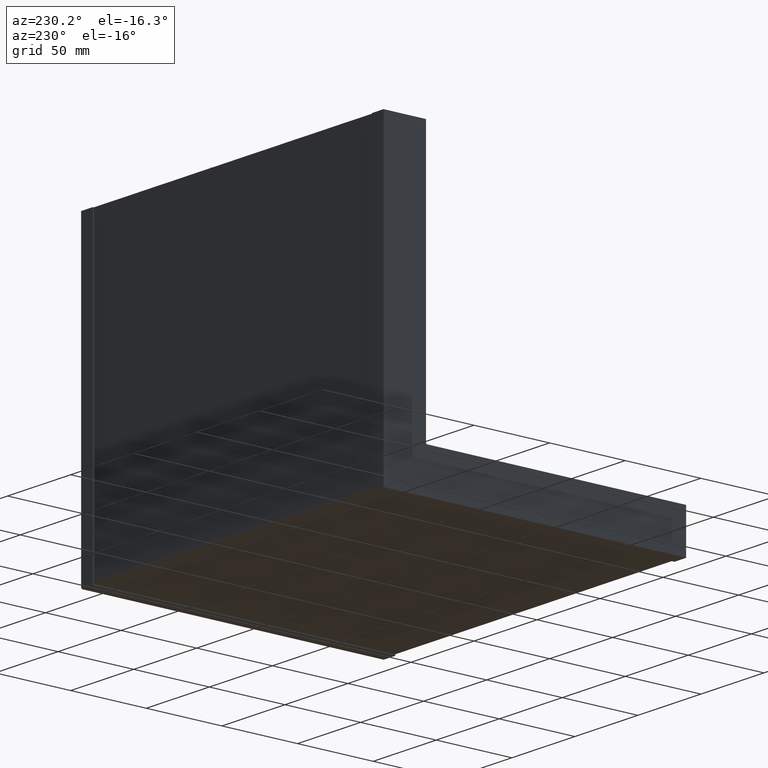
[diagram: clean part render]
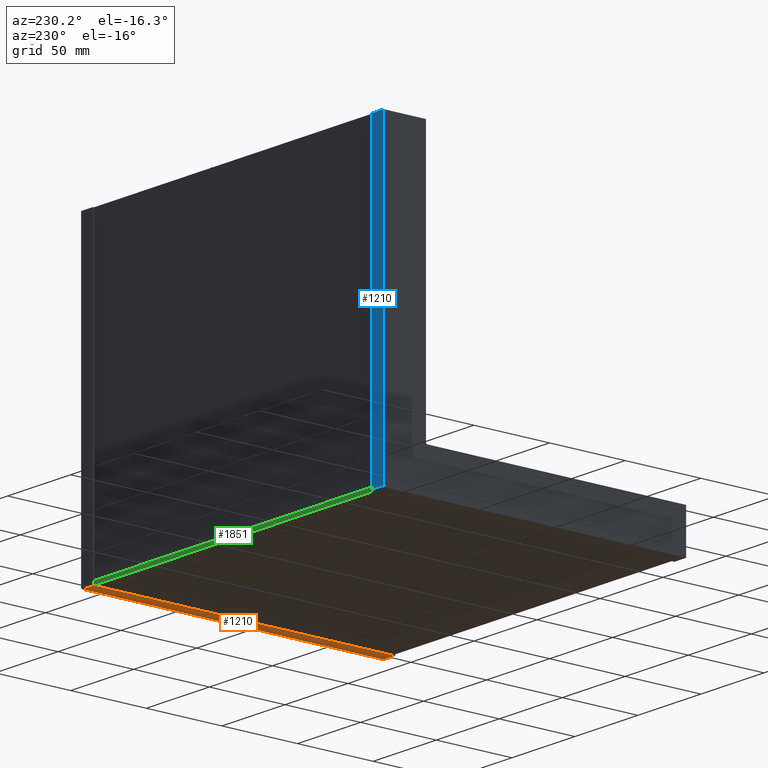
[diagram: same view with three faces highlighted in distinct colors, each labeled with its STEP entity id]
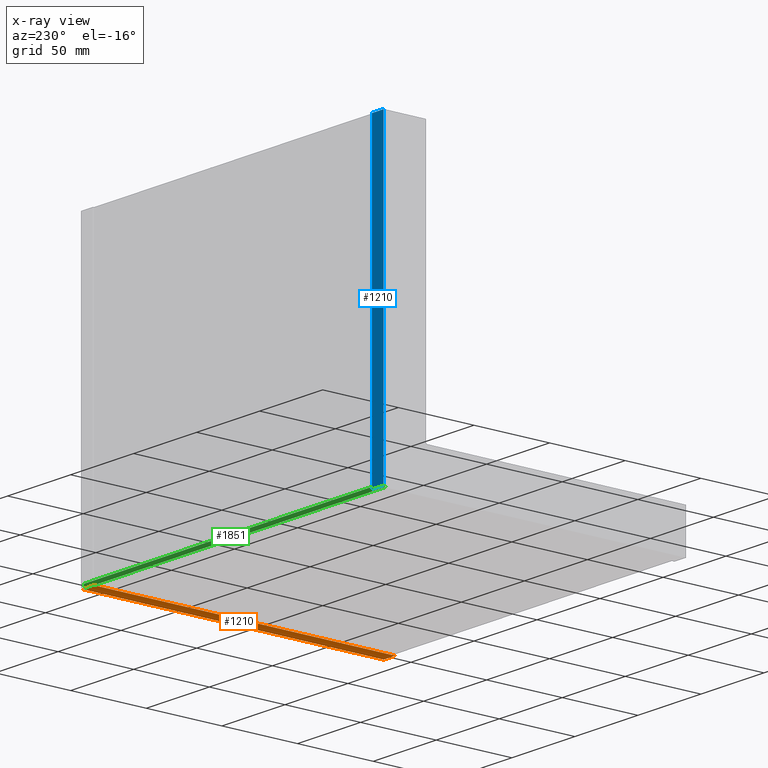
[diagram: x-ray of the same camera — body ghosted, the three highlighted faces saturated]
A machine part, auxiliary view with three faces highlighted in distinct colors.
The next image is the same camera in x-ray (body ghosted, the three faces saturated) — at least one of them is partly hidden behind the body in this view.
Their STEP definitions:

[orange] entity #1210 — the highlighted planar face has unit normal (0, 0, 1).
#813=DIRECTION('',(0.E0,1.E0,0.E0));
#814=VECTOR('',#813,9.25E0);
#815=CARTESIAN_POINT('',(-1.4E1,0.E0,0.E0));
#816=LINE('',#815,#814);
#885=DIRECTION('',(0.E0,0.E0,-1.E0));
#886=VECTOR('',#885,1.99E2);
#887=CARTESIAN_POINT('',(-1.4E1,0.E0,0.E0));
#888=LINE('',#887,#886);
#892=DIRECTION('',(0.E0,1.E0,0.E0));
#893=VECTOR('',#892,9.25E0);
#894=CARTESIAN_POINT('',(-1.4E1,0.E0,-1.99E2));
#895=LINE('',#894,#893);
#979=DIRECTION('',(0.E0,0.E0,-1.E0));
#980=VECTOR('',#979,1.99E2);
#981=CARTESIAN_POINT('',(-1.4E1,9.25E0,0.E0));
#982=LINE('',#981,#980);
#986=CARTESIAN_POINT('',(-1.4E1,0.E0,0.E0));
#987=CARTESIAN_POINT('',(-1.4E1,0.E0,-1.99E2));
#988=VERTEX_POINT('',#986);
#989=VERTEX_POINT('',#987);
#1010=CARTESIAN_POINT('',(-1.4E1,9.25E0,-1.99E2));
#1012=VERTEX_POINT('',#1010);
#1022=CARTESIAN_POINT('',(-1.4E1,9.25E0,0.E0));
#1023=VERTEX_POINT('',#1022);
#1197=CARTESIAN_POINT('',(-1.4E1,7.5E-1,0.E0));
#1198=DIRECTION('',(1.E0,0.E0,0.E0));
#1199=DIRECTION('',(0.E0,0.E0,-1.E0));
#1200=AXIS2_PLACEMENT_3D('',#1197,#1198,#1199);
#1201=PLANE('',#1200);
#1202=ORIENTED_EDGE('',*,*,#1183,.T.);
#1204=ORIENTED_EDGE('',*,*,#1203,.T.);
#1206=ORIENTED_EDGE('',*,*,#1205,.F.);
#1207=ORIENTED_EDGE('',*,*,#1129,.F.);
#1208=EDGE_LOOP('',(#1202,#1204,#1206,#1207));
#1209=FACE_OUTER_BOUND('',#1208,.F.);
#1129=EDGE_CURVE('',#988,#1023,#816,.T.);
#1183=EDGE_CURVE('',#988,#989,#888,.T.);
#1203=EDGE_CURVE('',#989,#1012,#895,.T.);
#1205=EDGE_CURVE('',#1023,#1012,#982,.T.);
#1210=ADVANCED_FACE('',(#1209),#1201,.F.);

[blue] entity #1210 — the highlighted planar face has unit normal (0, -1, 0).
#813=DIRECTION('',(0.E0,1.E0,0.E0));
#814=VECTOR('',#813,9.25E0);
#815=CARTESIAN_POINT('',(-1.4E1,0.E0,0.E0));
#816=LINE('',#815,#814);
#885=DIRECTION('',(0.E0,0.E0,-1.E0));
#886=VECTOR('',#885,1.99E2);
#887=CARTESIAN_POINT('',(-1.4E1,0.E0,0.E0));
#888=LINE('',#887,#886);
#892=DIRECTION('',(0.E0,1.E0,0.E0));
#893=VECTOR('',#892,9.25E0);
#894=CARTESIAN_POINT('',(-1.4E1,0.E0,-1.99E2));
#895=LINE('',#894,#893);
#979=DIRECTION('',(0.E0,0.E0,-1.E0));
#980=VECTOR('',#979,1.99E2);
#981=CARTESIAN_POINT('',(-1.4E1,9.25E0,0.E0));
#982=LINE('',#981,#980);
#986=CARTESIAN_POINT('',(-1.4E1,0.E0,0.E0));
#987=CARTESIAN_POINT('',(-1.4E1,0.E0,-1.99E2));
#988=VERTEX_POINT('',#986);
#989=VERTEX_POINT('',#987);
#1010=CARTESIAN_POINT('',(-1.4E1,9.25E0,-1.99E2));
#1012=VERTEX_POINT('',#1010);
#1022=CARTESIAN_POINT('',(-1.4E1,9.25E0,0.E0));
#1023=VERTEX_POINT('',#1022);
#1197=CARTESIAN_POINT('',(-1.4E1,7.5E-1,0.E0));
#1198=DIRECTION('',(1.E0,0.E0,0.E0));
#1199=DIRECTION('',(0.E0,0.E0,-1.E0));
#1200=AXIS2_PLACEMENT_3D('',#1197,#1198,#1199);
#1201=PLANE('',#1200);
#1202=ORIENTED_EDGE('',*,*,#1183,.T.);
#1204=ORIENTED_EDGE('',*,*,#1203,.T.);
#1206=ORIENTED_EDGE('',*,*,#1205,.F.);
#1207=ORIENTED_EDGE('',*,*,#1129,.F.);
#1208=EDGE_LOOP('',(#1202,#1204,#1206,#1207));
#1209=FACE_OUTER_BOUND('',#1208,.F.);
#1129=EDGE_CURVE('',#988,#1023,#816,.T.);
#1183=EDGE_CURVE('',#988,#989,#888,.T.);
#1203=EDGE_CURVE('',#989,#1012,#895,.T.);
#1205=EDGE_CURVE('',#1023,#1012,#982,.T.);
#1210=ADVANCED_FACE('',(#1209),#1201,.F.);

[green] entity #1851 — the highlighted cylindrical surface (edge-blend (fillet) strip) has radius 1.75 mm, axis along (1, 0, 0).
#1496=DIRECTION('',(1.E0,0.E0,0.E0));
#1497=VECTOR('',#1496,2.375E2);
#1498=CARTESIAN_POINT('',(-1.1875E2,6.700775253285E-1,1.E0));
#1499=LINE('',#1498,#1497);
#1645=CARTESIAN_POINT('',(-1.1875E2,-1.079922474672E0,1.E0));
#1646=DIRECTION('',(-1.E0,0.E0,0.E0));
#1647=DIRECTION('',(0.E0,1.E0,1.624097681737E-14));
#1648=AXIS2_PLACEMENT_3D('',#1645,#1646,#1647);
#1653=DIRECTION('',(1.E0,0.E0,0.E0));
#1654=VECTOR('',#1653,2.375E2);
#1655=CARTESIAN_POINT('',(-1.1875E2,-1.079922474672E0,-7.5E-1));
#1656=LINE('',#1655,#1654);
#1660=CARTESIAN_POINT('',(1.1875E2,-1.079922474672E0,1.E0));
#1661=DIRECTION('',(1.E0,0.E0,0.E0));
#1662=DIRECTION('',(0.E0,0.E0,-1.E0));
#1663=AXIS2_PLACEMENT_3D('',#1660,#1661,#1662);
#1669=CARTESIAN_POINT('',(1.1875E2,6.700775253285E-1,1.E0));
#1671=VERTEX_POINT('',#1669);
#1672=CARTESIAN_POINT('',(-1.1875E2,6.700775253285E-1,1.E0));
#1674=VERTEX_POINT('',#1672);
#1688=CARTESIAN_POINT('',(-1.1875E2,-1.079922474672E0,-7.5E-1));
#1689=CARTESIAN_POINT('',(1.1875E2,-1.079922474672E0,-7.5E-1));
#1690=VERTEX_POINT('',#1688);
#1691=VERTEX_POINT('',#1689);
#1840=CARTESIAN_POINT('',(-2.375110048613E2,-1.079922474672E0,1.E0));
#1841=DIRECTION('',(1.E0,0.E0,0.E0));
#1842=DIRECTION('',(0.E0,0.E0,-1.E0));
#1843=AXIS2_PLACEMENT_3D('',#1840,#1841,#1842);
#1844=CYLINDRICAL_SURFACE('',#1843,1.75E0);
#1845=ORIENTED_EDGE('',*,*,#1784,.T.);
#1846=ORIENTED_EDGE('',*,*,#1832,.T.);
#1847=ORIENTED_EDGE('',*,*,#1726,.T.);
#1848=ORIENTED_EDGE('',*,*,#1711,.F.);
#1849=EDGE_LOOP('',(#1845,#1846,#1847,#1848));
#1850=FACE_OUTER_BOUND('',#1849,.F.);
#1649=CIRCLE('',#1648,1.75E0);
#1664=CIRCLE('',#1663,1.75E0);
#1711=EDGE_CURVE('',#1674,#1671,#1499,.T.);
#1726=EDGE_CURVE('',#1691,#1671,#1664,.T.);
#1784=EDGE_CURVE('',#1674,#1690,#1649,.T.);
#1832=EDGE_CURVE('',#1690,#1691,#1656,.T.);
#1851=ADVANCED_FACE('',(#1850),#1844,.T.);